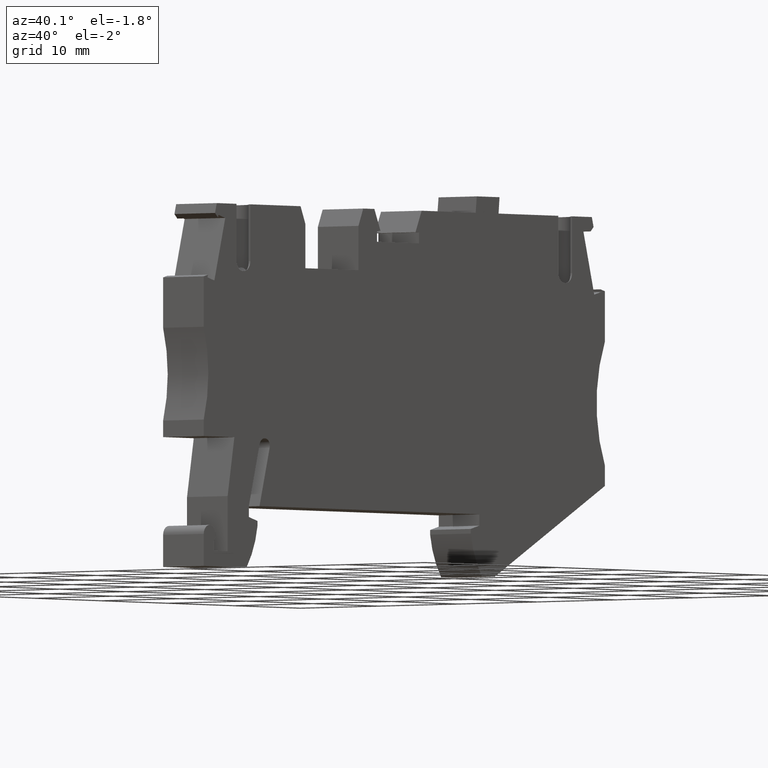
[diagram: clean part render]
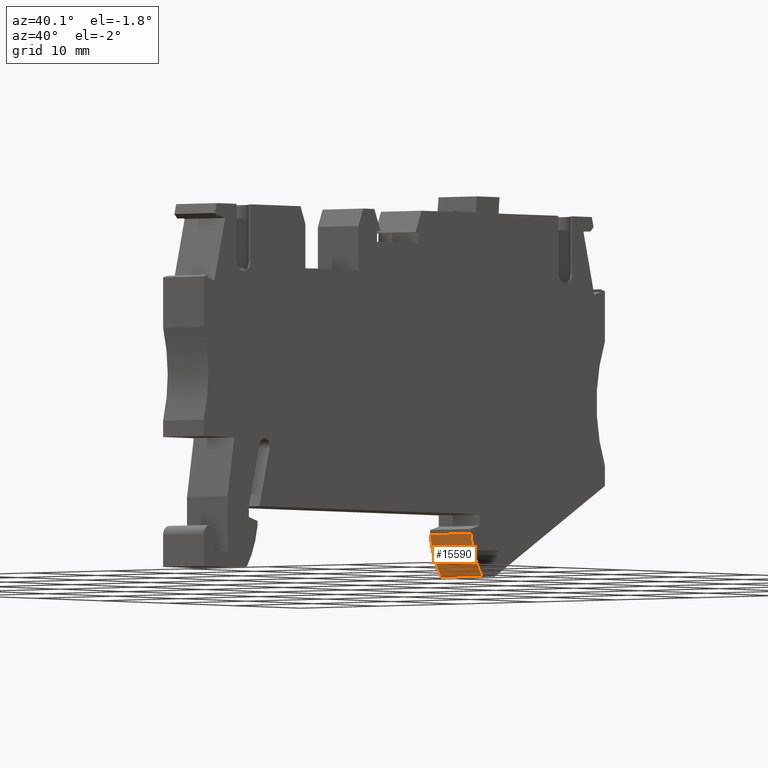
[diagram: same view with one face highlighted and labeled with its STEP entity id]
A machine part, auxiliary view. The second image highlights one B-rep face of the part: STEP entity #15590.
In plain terms, the highlighted cylindrical surface (partial cylindrical patch) has radius 9.5 mm, axis along (-1, 0, -0).
Its self-contained STEP definition (entity closure, byte-faithful):
#2710=CARTESIAN_POINT('',(19.4911108748079,-44.4000000000014,
53.6699999999939));
#2720=VERTEX_POINT('',#2710);
#2750=CARTESIAN_POINT('',(27.2261399010515,-38.8846282117038,
53.6699999999942));
#2760=DIRECTION('',(0.,0.,-1.));
#2770=DIRECTION('',(-1.,0.,0.));
#2780=AXIS2_PLACEMENT_3D('',#2750,#2760,#2770);
#2790=CIRCLE('',#2780,9.499999999999);
#2800=CARTESIAN_POINT('',(17.8321672216751,-40.3000000000019,
53.669999999996));
#2810=VERTEX_POINT('',#2800);
#2820=EDGE_CURVE('',#2720,#2810,#2790,.T.);
#8590=CARTESIAN_POINT('',(17.8321672216751,-40.300000000002,
48.5199999999973));
#8600=VERTEX_POINT('',#8590);
#8630=CARTESIAN_POINT('',(27.2261399010515,-38.8846282117038,
48.5199999999973));
#8640=DIRECTION('',(0.,0.,-1.));
#8650=DIRECTION('',(-1.,0.,0.));
#8660=AXIS2_PLACEMENT_3D('',#8630,#8640,#8650);
#8670=CIRCLE('',#8660,9.499999999999);
#8680=CARTESIAN_POINT('',(19.4911108748079,-44.4000000000014,
48.5199999999973));
#8690=VERTEX_POINT('',#8680);
#8700=EDGE_CURVE('',#8690,#8600,#8670,.T.);
#15380=CARTESIAN_POINT('',(27.2261399010515,-38.8846282117038,
48.5199999999999));
#15390=DIRECTION('',(0.,0.,-1.));
#15400=DIRECTION('',(-1.,0.,0.));
#15410=AXIS2_PLACEMENT_3D('',#15380,#15390,#15400);
#15420=CYLINDRICAL_SURFACE('',#15410,9.499999999999);
#15430=ORIENTED_EDGE('',*,*,#8700,.F.);
#15440=CARTESIAN_POINT('',(17.8321672216751,-40.300000000002,
48.5199999999999));
#15450=DIRECTION('',(0.,0.,-1.));
#15460=VECTOR('',#15450,1.);
#15470=LINE('',#15440,#15460);
#15480=EDGE_CURVE('',#2810,#8600,#15470,.T.);
#15490=ORIENTED_EDGE('',*,*,#15480,.T.);
#15500=ORIENTED_EDGE('',*,*,#2820,.T.);
#15510=CARTESIAN_POINT('',(19.4911108748078,-44.4000000000014,
48.5199999999999));
#15520=DIRECTION('',(0.,0.,-1.));
#15530=VECTOR('',#15520,1.);
#15540=LINE('',#15510,#15530);
#15550=EDGE_CURVE('',#2720,#8690,#15540,.T.);
#15560=ORIENTED_EDGE('',*,*,#15550,.F.);
#15570=EDGE_LOOP('',(#15560,#15500,#15490,#15430));
#15580=FACE_OUTER_BOUND('',#15570,.T.);
#15590=ADVANCED_FACE('',(#15580),#15420,.T.);